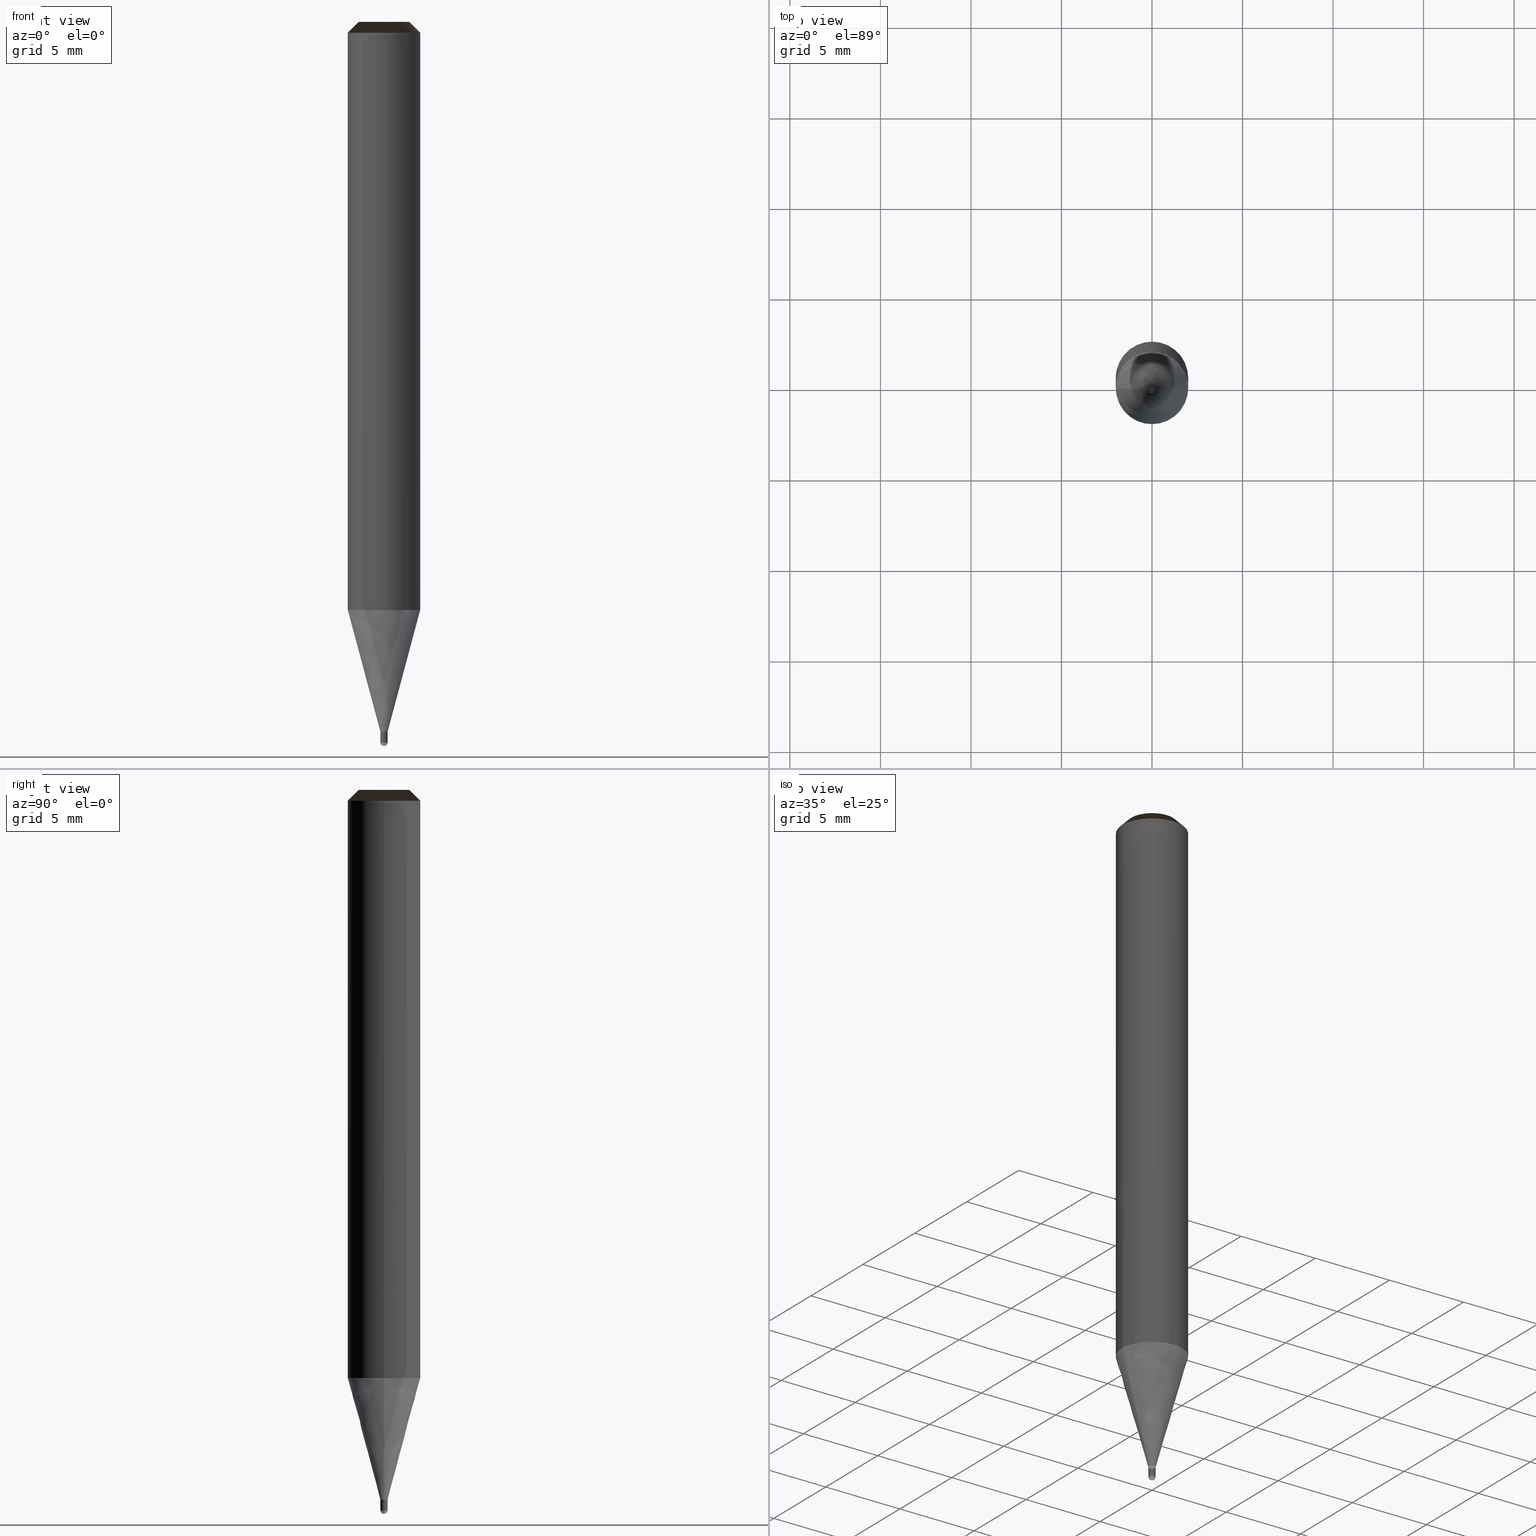
[diagram: canonical four-view strip — front | top / right | iso, engineering-drawing reading convention]
A machine part, canonical four-view strip (front | top / right | iso — engineering-drawing reading convention). The complete STEP part file that produces these views, byte-faithful:
ISO-10303-21;
HEADER;
/* Generated by ISBE GmbH (www.isbe.de) */
/* OPTION: using custom schema-name function */

FILE_DESCRIPTION(
/* description */ (''),
/* implementation_level */ '2;1');

FILE_NAME(
/*name*/ 'SHBS-2004-S04-STH',
/*time_stamp*/'2023-9-12T9:19:16',
/*author*/ ('ISBE GmbH'),
/*organization*/ ('ISBE GmbH'),
/*preprocessor_version*/ 'STEP IO v1.0',
/*originating_system*/ '',
/*authorisation*/ '');

FILE_SCHEMA (('AUTOMOTIVE_DESIGN'));
ENDSEC;

DATA;
#10=SHAPE_DEFINITION_REPRESENTATION(#11,#57);
#11=PRODUCT_DEFINITION_SHAPE('Document','',#13);
#12=PRODUCT_DEFINITION_CONTEXT('3D Mechanical Parts',#17,'design');
#13=PRODUCT_DEFINITION('A','First version',#14,#12);
#14=PRODUCT_DEFINITION_FORMATION_WITH_SPECIFIED_SOURCE('A','First version',#19,.MADE.);
#15=PRODUCT_RELATED_PRODUCT_CATEGORY('tool','tool',(#19));
#16=APPLICATION_PROTOCOL_DEFINITION('Draft International Standard', 'automotive_design',1999,#17);
#17=APPLICATION_CONTEXT('data for automotive mechanical design processes');
#18=PRODUCT_CONTEXT('3D Mechanical Parts',#17,'mechanical');
#19=PRODUCT('Document','Document','ISBE converted to STEP',(#18));
#20=(
LENGTH_UNIT()
NAMED_UNIT(*)
SI_UNIT(.MILLI.,.METRE.)
);
#21=(
NAMED_UNIT(*)
PLANE_ANGLE_UNIT()
SI_UNIT($,.RADIAN.)
);
#22=DIMENSIONAL_EXPONENTS(0.,0.,0.,0.,0.,0.,0.);
#23=PLANE_ANGLE_MEASURE_WITH_UNIT(PLANE_ANGLE_MEASURE(0.01745329252),#21);
#24=(
CONVERSION_BASED_UNIT('DEGREES',#23)
NAMED_UNIT(#22)
PLANE_ANGLE_UNIT()
);
#25=(
NAMED_UNIT(*)
SI_UNIT($,.STERADIAN.)
SOLID_ANGLE_UNIT()
);
#26=UNCERTAINTY_MEASURE_WITH_UNIT(LENGTH_MEASURE(0.001),#20, 'DISTANCE_ACCURACY_VALUE', 'Maximum model space distance between geometric entities at asserted connectivities');
#27=(
GEOMETRIC_REPRESENTATION_CONTEXT(3)
GLOBAL_UNCERTAINTY_ASSIGNED_CONTEXT((#26))
GLOBAL_UNIT_ASSIGNED_CONTEXT((#25,#24,#20))
REPRESENTATION_CONTEXT('ID1','3D')
);
#28=CARTESIAN_POINT('',(0.0,0.0,0.0));
#29=DIRECTION('',(1.0,0.0,0.0));
#30=DIRECTION('',(0.0,0.0,1.0));
#31=AXIS2_PLACEMENT_3D('',#28,#30,#29);
#32=CARTESIAN_POINT('',(0.0,0.0,0.0));
#33=DIRECTION('',(1.0,0.0,0.0));
#34=DIRECTION('',(0.0,0.0,1.0));
#35=AXIS2_PLACEMENT_3D('',#32,#34,#33);
#36=CARTESIAN_POINT('',(0.0,0.0,0.0));
#37=DIRECTION('',(1.0,0.0,0.0));
#38=DIRECTION('',(0.0,0.0,1.0));
#39=AXIS2_PLACEMENT_3D('',#36,#38,#37);
#40=CARTESIAN_POINT('',(0.0,0.0,0.0));
#41=DIRECTION('',(0.0,0.0,1.0));
#42=DIRECTION('',(1.0,0.0,0.0));
#43=AXIS2_PLACEMENT_3D('MCS',#40,#42,#41);
#44=CARTESIAN_POINT('',(0.0,0.0,32.482));
#45=DIRECTION('',(0.0,0.0,1.0));
#46=DIRECTION('',(1.0,0.0,0.0));
#47=AXIS2_PLACEMENT_3D('PCS',#44,#46,#45);
#48=CARTESIAN_POINT('',(0.0,0.0,-7.518));
#49=DIRECTION('',(0.0,0.0,1.0));
#50=DIRECTION('',(1.0,0.0,0.0));
#51=AXIS2_PLACEMENT_3D('CIP',#48,#50,#49);
#52=CARTESIAN_POINT('',(0.0,-0.2,-7.518));
#53=DIRECTION('',(0.0,0.0,1.0));
#54=DIRECTION('',(1.0,0.0,0.0));
#55=AXIS2_PLACEMENT_3D('CRP',#52,#54,#53);
#57=SHAPE_REPRESENTATION('Document',(#31,#35,#39,#43,#47,#51,#55),#27);
#58=DIRECTION('',(1.0,0.0,0.0));
#59=DIRECTION('',(0.0,0.0,1.0));
#60=CARTESIAN_POINT('',(-0.001999898138,-0.000020185088,-7.517967940187));
#61=CARTESIAN_POINT('',(-0.001937184154,-0.00611060247,-7.51789724324));
#62=CARTESIAN_POINT('',(-0.001858291588,-0.012678583356,-7.51758907855));
#63=CARTESIAN_POINT('',(-0.001757884212,-0.019123982412,-7.51707582259));
#64=CARTESIAN_POINT('',(-0.001623963692,-0.025523821837,-7.516358002765));
#65=CARTESIAN_POINT('',(-0.001445384409,-0.03188723763,-7.515436356683));
#66=CARTESIAN_POINT('',(-0.001211340412,-0.038212530765,-7.514311831398));
#67=CARTESIAN_POINT('',(-0.000911345944,-0.044494854652,-7.512985582436));
#68=CARTESIAN_POINT('',(-0.000535273497,-0.050728092807,-7.511458972608));
#69=CARTESIAN_POINT('',(-0.000073403757,-0.056905469984,-7.509733570607));
#70=CARTESIAN_POINT('',(0.000483521659,-0.063019788713,-7.507811149402));
#71=CARTESIAN_POINT('',(0.001144247288,-0.069063532568,-7.50569368441));
#72=CARTESIAN_POINT('',(0.001916951732,-0.075028916386,-7.503383351469));
#73=CARTESIAN_POINT('',(0.002809196959,-0.080907914367,-7.500882524603));
#74=CARTESIAN_POINT('',(0.003827879361,-0.08669227937,-7.49819377358));
#75=CARTESIAN_POINT('',(0.004979182916,-0.092373559718,-7.495319861275));
#76=CARTESIAN_POINT('',(0.006268534774,-0.097943116683,-7.492263740825));
#77=CARTESIAN_POINT('',(0.007700563585,-0.103392144361,-7.489028552601));
#78=CARTESIAN_POINT('',(0.009279060903,-0.108711692868,-7.485617620978));
#79=CARTESIAN_POINT('',(0.011006945995,-0.113892695338,-7.482034450919));
#80=CARTESIAN_POINT('',(0.0128862344,-0.118925998967,-7.478282724374));
#81=CARTESIAN_POINT('',(0.014918010555,-0.123802400146,-7.474366296494));
#82=CARTESIAN_POINT('',(0.017102404853,-0.128512683606,-7.470289191674));
#83=CARTESIAN_POINT('',(0.019438575412,-0.133047665398,-7.466055599415));
#84=CARTESIAN_POINT('',(0.021924694909,-0.137398239442,-7.46166987002));
#85=CARTESIAN_POINT('',(0.024557942723,-0.141555427309,-7.457136510121));
#86=CARTESIAN_POINT('',(0.027334502684,-0.145510430833,-7.452460178052));
#87=CARTESIAN_POINT('',(0.030249566622,-0.149254687095,-7.447645679062));
#88=CARTESIAN_POINT('',(0.033297343939,-0.152779925271,-7.442697960372));
#89=CARTESIAN_POINT('',(0.036471077322,-0.156078224784,-7.437622106098));
#90=CARTESIAN_POINT('',(0.039763064714,-0.159142074176,-7.432423332024));
#91=CARTESIAN_POINT('',(0.043164687581,-0.161964430072,-7.427106980242));
#92=CARTESIAN_POINT('',(0.04666644546,-0.164538775591,-7.421678513662));
#93=CARTESIAN_POINT('',(0.05025799672,-0.166859177548,-7.416143510401));
#94=CARTESIAN_POINT('',(0.053928205397,-0.168920341774,-7.410507658048));
#95=CARTESIAN_POINT('',(0.057665193907,-0.170717665895,-7.404776747824));
#96=CARTESIAN_POINT('',(0.061456401367,-0.172247288908,-7.398956668624));
#97=CARTESIAN_POINT('',(0.065288647189,-0.173506136924,-7.393053400976));
#98=CARTESIAN_POINT('',(0.069148199571,-0.174491964467,-7.387073010884));
#99=CARTESIAN_POINT('',(0.073020848405,-0.175203390765,-7.381021643605));
#100=CARTESIAN_POINT('',(0.076891982118,-0.175639930494,-7.374905517326));
#101=CARTESIAN_POINT('',(0.080746667854,-0.175802018512,-7.368730916782));
#102=CARTESIAN_POINT('',(0.084569734412,-0.17569102817,-7.362504186791));
#103=CARTESIAN_POINT('',(0.088345857261,-0.175309282845,-7.35623172574));
#104=CARTESIAN_POINT('',(0.092059644978,-0.174660060422,-7.349919979007));
#105=CARTESIAN_POINT('',(0.095695726368,-0.173747590532,-7.343575432337));
#106=CARTESIAN_POINT('',(0.099238837562,-0.172577044416,-7.337204605182));
#107=CARTESIAN_POINT('',(0.102673908347,-0.171154517385,-7.330814043996));
#108=CARTESIAN_POINT('',(0.105986147006,-0.16948700392,-7.324410315514));
#109=CARTESIAN_POINT('',(0.109161122935,-0.167582365539,-7.318));
#110=CARTESIAN_POINT('',(0.142612489397,-0.140220105078,-7.243));
#111=CARTESIAN_POINT('',(0.169404967778,-0.106310662175,-7.168));
#112=CARTESIAN_POINT('',(0.188287558844,-0.067437342656,-7.093));
#113=CARTESIAN_POINT('',(0.198378593246,-0.025415226569,-7.018));
#114=CARTESIAN_POINT('',(0.199206898587,0.017793581862,-6.943));
#115=CARTESIAN_POINT('',(0.190733799482,0.060171569159,-6.868));
#116=CARTESIAN_POINT('',(0.173354923405,0.099740014694,-6.793));
#117=CARTESIAN_POINT('',(0.147881727972,0.134651381471,-6.718));
#118=CARTESIAN_POINT('',(0.001999898138,0.000020185088,-7.517967940187));
#119=CARTESIAN_POINT('',(0.001937184154,0.00611060247,-7.51789724324));
#120=CARTESIAN_POINT('',(0.001858291588,0.012678583356,-7.51758907855));
#121=CARTESIAN_POINT('',(0.001757884212,0.019123982412,-7.51707582259));
#122=CARTESIAN_POINT('',(0.001623963692,0.025523821837,-7.516358002765));
#123=CARTESIAN_POINT('',(0.001445384409,0.03188723763,-7.515436356683));
#124=CARTESIAN_POINT('',(0.001211340412,0.038212530765,-7.514311831398));
#125=CARTESIAN_POINT('',(0.000911345944,0.044494854652,-7.512985582436));
#126=CARTESIAN_POINT('',(0.000535273497,0.050728092807,-7.511458972608));
#127=CARTESIAN_POINT('',(0.000073403757,0.056905469984,-7.509733570607));
#128=CARTESIAN_POINT('',(-0.000483521659,0.063019788713,-7.507811149402));
#129=CARTESIAN_POINT('',(-0.001144247288,0.069063532568,-7.50569368441));
#130=CARTESIAN_POINT('',(-0.001916951732,0.075028916386,-7.503383351469));
#131=CARTESIAN_POINT('',(-0.002809196959,0.080907914367,-7.500882524603));
#132=CARTESIAN_POINT('',(-0.003827879361,0.08669227937,-7.49819377358));
#133=CARTESIAN_POINT('',(-0.004979182916,0.092373559718,-7.495319861275));
#134=CARTESIAN_POINT('',(-0.006268534774,0.097943116683,-7.492263740825));
#135=CARTESIAN_POINT('',(-0.007700563585,0.103392144361,-7.489028552601));
#136=CARTESIAN_POINT('',(-0.009279060903,0.108711692868,-7.485617620978));
#137=CARTESIAN_POINT('',(-0.011006945995,0.113892695338,-7.482034450919));
#138=CARTESIAN_POINT('',(-0.0128862344,0.118925998967,-7.478282724374));
#139=CARTESIAN_POINT('',(-0.014918010555,0.123802400146,-7.474366296494));
#140=CARTESIAN_POINT('',(-0.017102404853,0.128512683606,-7.470289191674));
#141=CARTESIAN_POINT('',(-0.019438575412,0.133047665398,-7.466055599415));
#142=CARTESIAN_POINT('',(-0.021924694909,0.137398239442,-7.46166987002));
#143=CARTESIAN_POINT('',(-0.024557942723,0.141555427309,-7.457136510121));
#144=CARTESIAN_POINT('',(-0.027334502684,0.145510430833,-7.452460178052));
#145=CARTESIAN_POINT('',(-0.030249566622,0.149254687095,-7.447645679062));
#146=CARTESIAN_POINT('',(-0.033297343939,0.152779925271,-7.442697960372));
#147=CARTESIAN_POINT('',(-0.036471077322,0.156078224784,-7.437622106098));
#148=CARTESIAN_POINT('',(-0.039763064714,0.159142074176,-7.432423332024));
#149=CARTESIAN_POINT('',(-0.043164687581,0.161964430072,-7.427106980242));
#150=CARTESIAN_POINT('',(-0.04666644546,0.164538775591,-7.421678513662));
#151=CARTESIAN_POINT('',(-0.05025799672,0.166859177548,-7.416143510401));
#152=CARTESIAN_POINT('',(-0.053928205397,0.168920341774,-7.410507658048));
#153=CARTESIAN_POINT('',(-0.057665193907,0.170717665895,-7.404776747824));
#154=CARTESIAN_POINT('',(-0.061456401367,0.172247288908,-7.398956668624));
#155=CARTESIAN_POINT('',(-0.065288647189,0.173506136924,-7.393053400976));
#156=CARTESIAN_POINT('',(-0.069148199571,0.174491964467,-7.387073010884));
#157=CARTESIAN_POINT('',(-0.073020848405,0.175203390765,-7.381021643605));
#158=CARTESIAN_POINT('',(-0.076891982118,0.175639930494,-7.374905517326));
#159=CARTESIAN_POINT('',(-0.080746667854,0.175802018512,-7.368730916782));
#160=CARTESIAN_POINT('',(-0.084569734412,0.17569102817,-7.362504186791));
#161=CARTESIAN_POINT('',(-0.088345857261,0.175309282845,-7.35623172574));
#162=CARTESIAN_POINT('',(-0.092059644978,0.174660060422,-7.349919979007));
#163=CARTESIAN_POINT('',(-0.095695726368,0.173747590532,-7.343575432337));
#164=CARTESIAN_POINT('',(-0.099238837562,0.172577044416,-7.337204605182));
#165=CARTESIAN_POINT('',(-0.102673908347,0.171154517385,-7.330814043996));
#166=CARTESIAN_POINT('',(-0.105986147006,0.16948700392,-7.324410315514));
#167=CARTESIAN_POINT('',(-0.109161122935,0.167582365539,-7.318));
#168=CARTESIAN_POINT('',(-0.142612489397,0.140220105078,-7.243));
#169=CARTESIAN_POINT('',(-0.169404967778,0.106310662175,-7.168));
#170=CARTESIAN_POINT('',(-0.188287558844,0.067437342656,-7.093));
#171=CARTESIAN_POINT('',(-0.198378593246,0.025415226569,-7.018));
#172=CARTESIAN_POINT('',(-0.199206898587,-0.017793581862,-6.943));
#173=CARTESIAN_POINT('',(-0.190733799482,-0.060171569159,-6.868));
#174=CARTESIAN_POINT('',(-0.173354923405,-0.099740014694,-6.793));
#175=CARTESIAN_POINT('',(-0.147881727972,-0.134651381471,-6.718));
#176=CARTESIAN_POINT('',(0.0,0.0,-7.518));
#177=CARTESIAN_POINT('',(0.2,0.0,-7.518));
#178=CARTESIAN_POINT('',(0.2,0.2,-7.518));
#179=CARTESIAN_POINT('',(0.0,0.2,-7.518));
#180=CARTESIAN_POINT('',(-0.2,0.2,-7.518));
#181=CARTESIAN_POINT('',(-0.2,0.0,-7.518));
#182=CARTESIAN_POINT('',(0.2,0.0,-7.318));
#183=CARTESIAN_POINT('',(0.2,0.2,-7.318));
#184=CARTESIAN_POINT('',(0.0,0.2,-7.318));
#185=CARTESIAN_POINT('',(-0.2,0.2,-7.318));
#186=CARTESIAN_POINT('',(-0.2,0.0,-7.318));
#187=CARTESIAN_POINT('',(0.2,0.0,-6.718));
#188=CARTESIAN_POINT('',(0.2,0.2,-6.718));
#189=CARTESIAN_POINT('',(0.0,0.2,-6.718));
#190=CARTESIAN_POINT('',(-0.2,0.2,-6.718));
#191=CARTESIAN_POINT('',(-0.2,0.0,-6.718));
#192=CARTESIAN_POINT('',(0.0,0.0,-6.718));
#193=CARTESIAN_POINT('',(-0.2,-0.2,-7.518));
#194=CARTESIAN_POINT('',(0.0,-0.2,-7.518));
#195=CARTESIAN_POINT('',(0.2,-0.2,-7.518));
#196=CARTESIAN_POINT('',(-0.2,-0.2,-7.318));
#197=CARTESIAN_POINT('',(0.0,-0.2,-7.318));
#198=CARTESIAN_POINT('',(0.2,-0.2,-7.318));
#199=CARTESIAN_POINT('',(-0.2,-0.2,-6.718));
#200=CARTESIAN_POINT('',(0.0,-0.2,-6.718));
#201=CARTESIAN_POINT('',(0.2,-0.2,-6.718));
#202=CARTESIAN_POINT('',(0.2,0.0,-6.717691453624));
#203=CARTESIAN_POINT('',(0.2,0.2,-6.717691453624));
#204=CARTESIAN_POINT('',(0.0,0.2,-6.717691453624));
#205=CARTESIAN_POINT('',(-0.2,0.2,-6.717691453624));
#206=CARTESIAN_POINT('',(-0.2,0.0,-6.717691453624));
#207=CARTESIAN_POINT('',(2.0,0.0,-0.0));
#208=CARTESIAN_POINT('',(2.0,2.0,-0.0));
#209=CARTESIAN_POINT('',(0.0,2.0,-0.0));
#210=CARTESIAN_POINT('',(-2.0,2.0,-0.0));
#211=CARTESIAN_POINT('',(-2.0,0.0,-0.0));
#212=CARTESIAN_POINT('',(2.0,0.0,31.882));
#213=CARTESIAN_POINT('',(2.0,2.0,31.882));
#214=CARTESIAN_POINT('',(0.0,2.0,31.882));
#215=CARTESIAN_POINT('',(-2.0,2.0,31.882));
#216=CARTESIAN_POINT('',(-2.0,0.0,31.882));
#217=CARTESIAN_POINT('',(1.4,0.0,32.482));
#218=CARTESIAN_POINT('',(1.4,1.4,32.482));
#219=CARTESIAN_POINT('',(0.0,1.4,32.482));
#220=CARTESIAN_POINT('',(-1.4,1.4,32.482));
#221=CARTESIAN_POINT('',(-1.4,0.0,32.482));
#222=CARTESIAN_POINT('',(0.0,0.0,32.482));
#223=CARTESIAN_POINT('',(-0.2,-0.2,-6.717691453624));
#224=CARTESIAN_POINT('',(0.0,-0.2,-6.717691453624));
#225=CARTESIAN_POINT('',(0.2,-0.2,-6.717691453624));
#226=CARTESIAN_POINT('',(-2.0,-2.0,-0.0));
#227=CARTESIAN_POINT('',(0.0,-2.0,-0.0));
#228=CARTESIAN_POINT('',(2.0,-2.0,-0.0));
#229=CARTESIAN_POINT('',(-2.0,-2.0,31.882));
#230=CARTESIAN_POINT('',(0.0,-2.0,31.882));
#231=CARTESIAN_POINT('',(2.0,-2.0,31.882));
#232=CARTESIAN_POINT('',(-1.4,-1.4,32.482));
#233=CARTESIAN_POINT('',(0.0,-1.4,32.482));
#234=CARTESIAN_POINT('',(1.4,-1.4,32.482));
#235=(
BOUNDED_CURVE()
B_SPLINE_CURVE(1,(#60,#61,#62,#63,#64,#65,#66,#67,#68,#69,#70,#71,#72,#73,#74,#75,#76,#77,#78,#79,#80,#81,#82,#83,#84,#85,#86,#87,#88,#89,#90,#91,#92,#93,#94,#95,#96,#97,#98,#99,#100,#101,#102,#103,#104,#105,#106,#107,#108,#109,#110,#111,#112,#113,#114,#115,#116,#117),.UNSPECIFIED.,.F.,.F.)
B_SPLINE_CURVE_WITH_KNOTS((2,1,1,1,1,1,1,1,1,1,1,1,1,1,1,1,1,1,1,1,1,1,1,1,1,1,1,1,1,1,1,1,1,1,1,1,1,1,1,1,1,1,1,1,1,1,1,1,1,1,1,1,1,1,1,1,1,2),
(0.0,0.005938330508,0.012349033804,0.018653376583,0.024933132157,0.031204045438,0.037471493311,0.043738020566,0.050005207521,0.05627429735,0.062546451835,0.068822870084,0.075104847856,0.081393807129,0.087691308568,0.093999052806,0.10031887357,0.106652724399,0.113002660091,0.119370813757,0.125759370244,0.132170536666,0.13860651076,0.145069447815,0.151561426903,0.158084417154,0.164640244753,0.171230561351,0.177856814475,0.184520220477,0.191221740487,0.19796205973,0.204741570506,0.211560359019,0.218418196179,0.225314532416,0.232248496469,0.23921889807,0.246224234384,0.253262700007,0.260332200332,0.267430368015,0.274554582308,0.281701990964,0.288869534451,0.296053972174,0.303251910438,0.310459831836,0.317674125808,0.324891120056,0.409279730049,0.493668340042,0.578056950035,0.662445560028,0.746834170021,0.831222780014,0.915611390007,1.0),.UNSPECIFIED.)
CURVE()
GEOMETRIC_REPRESENTATION_ITEM()
RATIONAL_B_SPLINE_CURVE((1.0,1.0,1.0,1.0,1.0,1.0,1.0,1.0,1.0,1.0,1.0,1.0,1.0,1.0,1.0,1.0,1.0,1.0,1.0,1.0,1.0,1.0,1.0,1.0,1.0,1.0,1.0,1.0,1.0,1.0,1.0,1.0,1.0,1.0,1.0,1.0,1.0,1.0,1.0,1.0,1.0,1.0,1.0,1.0,1.0,1.0,1.0,1.0,1.0,1.0,1.0,1.0,1.0,1.0,1.0,1.0,1.0,1.0))
REPRESENTATION_ITEM('')
);
#236=(
BOUNDED_CURVE()
B_SPLINE_CURVE(1,(#118,#119,#120,#121,#122,#123,#124,#125,#126,#127,#128,#129,#130,#131,#132,#133,#134,#135,#136,#137,#138,#139,#140,#141,#142,#143,#144,#145,#146,#147,#148,#149,#150,#151,#152,#153,#154,#155,#156,#157,#158,#159,#160,#161,#162,#163,#164,#165,#166,#167,#168,#169,#170,#171,#172,#173,#174,#175),.UNSPECIFIED.,.F.,.F.)
B_SPLINE_CURVE_WITH_KNOTS((2,1,1,1,1,1,1,1,1,1,1,1,1,1,1,1,1,1,1,1,1,1,1,1,1,1,1,1,1,1,1,1,1,1,1,1,1,1,1,1,1,1,1,1,1,1,1,1,1,1,1,1,1,1,1,1,1,2),
(0.0,0.005938330508,0.012349033804,0.018653376583,0.024933132157,0.031204045438,0.037471493311,0.043738020566,0.050005207521,0.05627429735,0.062546451835,0.068822870084,0.075104847856,0.081393807129,0.087691308568,0.093999052806,0.10031887357,0.106652724399,0.113002660091,0.119370813757,0.125759370244,0.132170536666,0.13860651076,0.145069447815,0.151561426903,0.158084417154,0.164640244753,0.171230561351,0.177856814475,0.184520220477,0.191221740487,0.19796205973,0.204741570506,0.211560359019,0.218418196179,0.225314532416,0.232248496469,0.23921889807,0.246224234384,0.253262700007,0.260332200332,0.267430368015,0.274554582308,0.281701990964,0.288869534451,0.296053972174,0.303251910438,0.310459831836,0.317674125808,0.324891120056,0.409279730049,0.493668340042,0.578056950035,0.662445560028,0.746834170021,0.831222780014,0.915611390007,1.0),.UNSPECIFIED.)
CURVE()
GEOMETRIC_REPRESENTATION_ITEM()
RATIONAL_B_SPLINE_CURVE((1.0,1.0,1.0,1.0,1.0,1.0,1.0,1.0,1.0,1.0,1.0,1.0,1.0,1.0,1.0,1.0,1.0,1.0,1.0,1.0,1.0,1.0,1.0,1.0,1.0,1.0,1.0,1.0,1.0,1.0,1.0,1.0,1.0,1.0,1.0,1.0,1.0,1.0,1.0,1.0,1.0,1.0,1.0,1.0,1.0,1.0,1.0,1.0,1.0,1.0,1.0,1.0,1.0,1.0,1.0,1.0,1.0,1.0))
REPRESENTATION_ITEM('')
);
#237=SHAPE_REPRESENTATION_RELATIONSHIP('','',#57,#238);
#238=GEOMETRICALLY_BOUNDED_WIREFRAME_SHAPE_REPRESENTATION('Curves',(#239,#31),#27);
#239=GEOMETRIC_CURVE_SET('CurveSet',(#235,#236));
#240=(
BOUNDED_SURFACE()
B_SPLINE_SURFACE(2,2,(
(#176,#176,#176,#176,#176),
(#177,#178,#179,#180,#181),
(#182,#183,#184,#185,#186)
), .UNSPECIFIED.,.F.,.F.,.F.)
B_SPLINE_SURFACE_WITH_KNOTS((3,3),(3,2,3),(
0.0,1.0),(
0.0,0.5,1.0), .UNSPECIFIED.)
GEOMETRIC_REPRESENTATION_ITEM()
RATIONAL_B_SPLINE_SURFACE(((1.0,0.707106781187,1.0,0.707106781187,1.0),
(0.707106781187,0.5,0.707106781187,0.5,0.707106781187),
(1.0,0.707106781187,1.0,0.707106781187,1.0)
))
REPRESENTATION_ITEM('')
SURFACE()
);
#241=(
BOUNDED_CURVE()
B_SPLINE_CURVE(2,(#182,#183,#184,#185,#186),.UNSPECIFIED.,.F.,.F.)
B_SPLINE_CURVE_WITH_KNOTS((3,2,3),
(0.0,0.5,1.0),.UNSPECIFIED.)
CURVE()
GEOMETRIC_REPRESENTATION_ITEM()
RATIONAL_B_SPLINE_CURVE((1.0,0.707106781187,1.0,0.707106781187,1.0))
REPRESENTATION_ITEM('')
);
#242=(
BOUNDED_CURVE()
B_SPLINE_CURVE(2,(#186,#181,#176),.UNSPECIFIED.,.F.,.F.)
B_SPLINE_CURVE_WITH_KNOTS((3,3),
(0.0,1.0),.UNSPECIFIED.)
CURVE()
GEOMETRIC_REPRESENTATION_ITEM()
RATIONAL_B_SPLINE_CURVE((1.0,0.707106781187,1.0))
REPRESENTATION_ITEM('')
);
#243=(
BOUNDED_CURVE()
B_SPLINE_CURVE(2,(#176,#177,#182),.UNSPECIFIED.,.F.,.F.)
B_SPLINE_CURVE_WITH_KNOTS((3,3),
(0.0,1.0),.UNSPECIFIED.)
CURVE()
GEOMETRIC_REPRESENTATION_ITEM()
RATIONAL_B_SPLINE_CURVE((1.0,0.707106781187,1.0))
REPRESENTATION_ITEM('')
);
#244=VERTEX_POINT('',#176);
#245=VERTEX_POINT('',#182);
#246=VERTEX_POINT('',#186);
#247=EDGE_CURVE('',#245,#246,#241,.T.);
#248=EDGE_CURVE('',#246,#244,#242,.T.);
#249=EDGE_CURVE('',#244,#245,#243,.T.);
#250=ORIENTED_EDGE('',*,*,#247,.T.);
#251=ORIENTED_EDGE('',*,*,#248,.T.);
#252=ORIENTED_EDGE('',*,*,#249,.T.);
#253=EDGE_LOOP('',(#250,#251,#252));
#254=FACE_OUTER_BOUND('',#253,.T.);
#255=ADVANCED_FACE('',(#254),#240,.T.);
#256=(
BOUNDED_SURFACE()
B_SPLINE_SURFACE(1,2,(
(#182,#183,#184,#185,#186),
(#187,#188,#189,#190,#191)
), .UNSPECIFIED.,.F.,.F.,.F.)
B_SPLINE_SURFACE_WITH_KNOTS((2,2),(3,2,3),(
0.0,1.0),(
0.0,0.5,1.0), .UNSPECIFIED.)
GEOMETRIC_REPRESENTATION_ITEM()
RATIONAL_B_SPLINE_SURFACE(((1.0,0.707106781187,1.0,0.707106781187,1.0),
(1.0,0.707106781187,1.0,0.707106781187,1.0)
))
REPRESENTATION_ITEM('')
SURFACE()
);
#257=(
BOUNDED_CURVE()
B_SPLINE_CURVE(2,(#187,#188,#189,#190,#191),.UNSPECIFIED.,.F.,.F.)
B_SPLINE_CURVE_WITH_KNOTS((3,2,3),
(0.0,0.5,1.0),.UNSPECIFIED.)
CURVE()
GEOMETRIC_REPRESENTATION_ITEM()
RATIONAL_B_SPLINE_CURVE((1.0,0.707106781187,1.0,0.707106781187,1.0))
REPRESENTATION_ITEM('')
);
#258=(
BOUNDED_CURVE()
B_SPLINE_CURVE(1,(#191,#186),.UNSPECIFIED.,.F.,.F.)
B_SPLINE_CURVE_WITH_KNOTS((2,2),
(0.0,1.0),.UNSPECIFIED.)
CURVE()
GEOMETRIC_REPRESENTATION_ITEM()
RATIONAL_B_SPLINE_CURVE((1.0,1.0))
REPRESENTATION_ITEM('')
);
#259=(
BOUNDED_CURVE()
B_SPLINE_CURVE(2,(#186,#185,#184,#183,#182),.UNSPECIFIED.,.F.,.F.)
B_SPLINE_CURVE_WITH_KNOTS((3,2,3),
(0.0,0.5,1.0),.UNSPECIFIED.)
CURVE()
GEOMETRIC_REPRESENTATION_ITEM()
RATIONAL_B_SPLINE_CURVE((1.0,0.707106781187,1.0,0.707106781187,1.0))
REPRESENTATION_ITEM('')
);
#260=(
BOUNDED_CURVE()
B_SPLINE_CURVE(1,(#182,#187),.UNSPECIFIED.,.F.,.F.)
B_SPLINE_CURVE_WITH_KNOTS((2,2),
(0.0,1.0),.UNSPECIFIED.)
CURVE()
GEOMETRIC_REPRESENTATION_ITEM()
RATIONAL_B_SPLINE_CURVE((1.0,1.0))
REPRESENTATION_ITEM('')
);
#261=VERTEX_POINT('',#182);
#262=VERTEX_POINT('',#186);
#263=VERTEX_POINT('',#187);
#264=VERTEX_POINT('',#191);
#265=EDGE_CURVE('',#263,#264,#257,.T.);
#266=EDGE_CURVE('',#264,#262,#258,.T.);
#267=EDGE_CURVE('',#262,#261,#259,.T.);
#268=EDGE_CURVE('',#261,#263,#260,.T.);
#269=ORIENTED_EDGE('',*,*,#265,.T.);
#270=ORIENTED_EDGE('',*,*,#266,.T.);
#271=ORIENTED_EDGE('',*,*,#267,.T.);
#272=ORIENTED_EDGE('',*,*,#268,.T.);
#273=EDGE_LOOP('',(#269,#270,#271,#272));
#274=FACE_OUTER_BOUND('',#273,.T.);
#275=ADVANCED_FACE('',(#274),#256,.T.);
#276=(
BOUNDED_SURFACE()
B_SPLINE_SURFACE(1,2,(
(#187,#188,#189,#190,#191),
(#192,#192,#192,#192,#192)
), .UNSPECIFIED.,.F.,.F.,.F.)
B_SPLINE_SURFACE_WITH_KNOTS((2,2),(3,2,3),(
0.0,1.0),(
0.0,0.5,1.0), .UNSPECIFIED.)
GEOMETRIC_REPRESENTATION_ITEM()
RATIONAL_B_SPLINE_SURFACE(((1.0,0.707106781187,1.0,0.707106781187,1.0),
(1.0,0.707106781187,1.0,0.707106781187,1.0)
))
REPRESENTATION_ITEM('')
SURFACE()
);
#277=(
BOUNDED_CURVE()
B_SPLINE_CURVE(1,(#192,#187),.UNSPECIFIED.,.F.,.F.)
B_SPLINE_CURVE_WITH_KNOTS((2,2),
(0.0,1.0),.UNSPECIFIED.)
CURVE()
GEOMETRIC_REPRESENTATION_ITEM()
RATIONAL_B_SPLINE_CURVE((1.0,1.0))
REPRESENTATION_ITEM('')
);
#278=(
BOUNDED_CURVE()
B_SPLINE_CURVE(2,(#187,#188,#189,#190,#191),.UNSPECIFIED.,.F.,.F.)
B_SPLINE_CURVE_WITH_KNOTS((3,2,3),
(0.0,0.5,1.0),.UNSPECIFIED.)
CURVE()
GEOMETRIC_REPRESENTATION_ITEM()
RATIONAL_B_SPLINE_CURVE((1.0,0.707106781187,1.0,0.707106781187,1.0))
REPRESENTATION_ITEM('')
);
#279=(
BOUNDED_CURVE()
B_SPLINE_CURVE(1,(#191,#192),.UNSPECIFIED.,.F.,.F.)
B_SPLINE_CURVE_WITH_KNOTS((2,2),
(0.0,1.0),.UNSPECIFIED.)
CURVE()
GEOMETRIC_REPRESENTATION_ITEM()
RATIONAL_B_SPLINE_CURVE((1.0,1.0))
REPRESENTATION_ITEM('')
);
#280=VERTEX_POINT('',#187);
#281=VERTEX_POINT('',#191);
#282=VERTEX_POINT('',#192);
#283=EDGE_CURVE('',#282,#280,#277,.T.);
#284=EDGE_CURVE('',#280,#281,#278,.T.);
#285=EDGE_CURVE('',#281,#282,#279,.T.);
#286=ORIENTED_EDGE('',*,*,#283,.T.);
#287=ORIENTED_EDGE('',*,*,#284,.T.);
#288=ORIENTED_EDGE('',*,*,#285,.T.);
#289=EDGE_LOOP('',(#286,#287,#288));
#290=FACE_OUTER_BOUND('',#289,.T.);
#291=ADVANCED_FACE('',(#290),#276,.T.);
#292=(
BOUNDED_SURFACE()
B_SPLINE_SURFACE(2,2,(
(#176,#176,#176,#176,#176),
(#181,#193,#194,#195,#177),
(#186,#196,#197,#198,#182)
), .UNSPECIFIED.,.F.,.F.,.F.)
B_SPLINE_SURFACE_WITH_KNOTS((3,3),(3,2,3),(
0.0,1.0),(
0.0,0.5,1.0), .UNSPECIFIED.)
GEOMETRIC_REPRESENTATION_ITEM()
RATIONAL_B_SPLINE_SURFACE(((1.0,0.707106781187,1.0,0.707106781187,1.0),
(0.707106781187,0.5,0.707106781187,0.5,0.707106781187),
(1.0,0.707106781187,1.0,0.707106781187,1.0)
))
REPRESENTATION_ITEM('')
SURFACE()
);
#293=(
BOUNDED_CURVE()
B_SPLINE_CURVE(2,(#186,#181,#176),.UNSPECIFIED.,.F.,.F.)
B_SPLINE_CURVE_WITH_KNOTS((3,3),
(0.0,1.0),.UNSPECIFIED.)
CURVE()
GEOMETRIC_REPRESENTATION_ITEM()
RATIONAL_B_SPLINE_CURVE((1.0,0.707106781187,1.0))
REPRESENTATION_ITEM('')
);
#294=(
BOUNDED_CURVE()
B_SPLINE_CURVE(2,(#176,#177,#182),.UNSPECIFIED.,.F.,.F.)
B_SPLINE_CURVE_WITH_KNOTS((3,3),
(0.0,1.0),.UNSPECIFIED.)
CURVE()
GEOMETRIC_REPRESENTATION_ITEM()
RATIONAL_B_SPLINE_CURVE((1.0,0.707106781187,1.0))
REPRESENTATION_ITEM('')
);
#295=(
BOUNDED_CURVE()
B_SPLINE_CURVE(2,(#182,#198,#197,#196,#186),.UNSPECIFIED.,.F.,.F.)
B_SPLINE_CURVE_WITH_KNOTS((3,2,3),
(0.0,0.5,1.0),.UNSPECIFIED.)
CURVE()
GEOMETRIC_REPRESENTATION_ITEM()
RATIONAL_B_SPLINE_CURVE((1.0,0.707106781187,1.0,0.707106781187,1.0))
REPRESENTATION_ITEM('')
);
#296=VERTEX_POINT('',#176);
#297=VERTEX_POINT('',#182);
#298=VERTEX_POINT('',#186);
#299=EDGE_CURVE('',#298,#296,#293,.T.);
#300=EDGE_CURVE('',#296,#297,#294,.T.);
#301=EDGE_CURVE('',#297,#298,#295,.T.);
#302=ORIENTED_EDGE('',*,*,#299,.T.);
#303=ORIENTED_EDGE('',*,*,#300,.T.);
#304=ORIENTED_EDGE('',*,*,#301,.T.);
#305=EDGE_LOOP('',(#302,#303,#304));
#306=FACE_OUTER_BOUND('',#305,.T.);
#307=ADVANCED_FACE('',(#306),#292,.T.);
#308=(
BOUNDED_SURFACE()
B_SPLINE_SURFACE(1,2,(
(#186,#196,#197,#198,#182),
(#191,#199,#200,#201,#187)
), .UNSPECIFIED.,.F.,.F.,.F.)
B_SPLINE_SURFACE_WITH_KNOTS((2,2),(3,2,3),(
0.0,1.0),(
0.0,0.5,1.0), .UNSPECIFIED.)
GEOMETRIC_REPRESENTATION_ITEM()
RATIONAL_B_SPLINE_SURFACE(((1.0,0.707106781187,1.0,0.707106781187,1.0),
(1.0,0.707106781187,1.0,0.707106781187,1.0)
))
REPRESENTATION_ITEM('')
SURFACE()
);
#309=(
BOUNDED_CURVE()
B_SPLINE_CURVE(1,(#191,#186),.UNSPECIFIED.,.F.,.F.)
B_SPLINE_CURVE_WITH_KNOTS((2,2),
(0.0,1.0),.UNSPECIFIED.)
CURVE()
GEOMETRIC_REPRESENTATION_ITEM()
RATIONAL_B_SPLINE_CURVE((1.0,1.0))
REPRESENTATION_ITEM('')
);
#310=(
BOUNDED_CURVE()
B_SPLINE_CURVE(2,(#186,#196,#197,#198,#182),.UNSPECIFIED.,.F.,.F.)
B_SPLINE_CURVE_WITH_KNOTS((3,2,3),
(0.0,0.5,1.0),.UNSPECIFIED.)
CURVE()
GEOMETRIC_REPRESENTATION_ITEM()
RATIONAL_B_SPLINE_CURVE((1.0,0.707106781187,1.0,0.707106781187,1.0))
REPRESENTATION_ITEM('')
);
#311=(
BOUNDED_CURVE()
B_SPLINE_CURVE(1,(#182,#187),.UNSPECIFIED.,.F.,.F.)
B_SPLINE_CURVE_WITH_KNOTS((2,2),
(0.0,1.0),.UNSPECIFIED.)
CURVE()
GEOMETRIC_REPRESENTATION_ITEM()
RATIONAL_B_SPLINE_CURVE((1.0,1.0))
REPRESENTATION_ITEM('')
);
#312=(
BOUNDED_CURVE()
B_SPLINE_CURVE(2,(#187,#201,#200,#199,#191),.UNSPECIFIED.,.F.,.F.)
B_SPLINE_CURVE_WITH_KNOTS((3,2,3),
(0.0,0.5,1.0),.UNSPECIFIED.)
CURVE()
GEOMETRIC_REPRESENTATION_ITEM()
RATIONAL_B_SPLINE_CURVE((1.0,0.707106781187,1.0,0.707106781187,1.0))
REPRESENTATION_ITEM('')
);
#313=VERTEX_POINT('',#182);
#314=VERTEX_POINT('',#186);
#315=VERTEX_POINT('',#187);
#316=VERTEX_POINT('',#191);
#317=EDGE_CURVE('',#316,#314,#309,.T.);
#318=EDGE_CURVE('',#314,#313,#310,.T.);
#319=EDGE_CURVE('',#313,#315,#311,.T.);
#320=EDGE_CURVE('',#315,#316,#312,.T.);
#321=ORIENTED_EDGE('',*,*,#317,.T.);
#322=ORIENTED_EDGE('',*,*,#318,.T.);
#323=ORIENTED_EDGE('',*,*,#319,.T.);
#324=ORIENTED_EDGE('',*,*,#320,.T.);
#325=EDGE_LOOP('',(#321,#322,#323,#324));
#326=FACE_OUTER_BOUND('',#325,.T.);
#327=ADVANCED_FACE('',(#326),#308,.T.);
#328=(
BOUNDED_SURFACE()
B_SPLINE_SURFACE(1,2,(
(#191,#199,#200,#201,#187),
(#192,#192,#192,#192,#192)
), .UNSPECIFIED.,.F.,.F.,.F.)
B_SPLINE_SURFACE_WITH_KNOTS((2,2),(3,2,3),(
0.0,1.0),(
0.0,0.5,1.0), .UNSPECIFIED.)
GEOMETRIC_REPRESENTATION_ITEM()
RATIONAL_B_SPLINE_SURFACE(((1.0,0.707106781187,1.0,0.707106781187,1.0),
(1.0,0.707106781187,1.0,0.707106781187,1.0)
))
REPRESENTATION_ITEM('')
SURFACE()
);
#329=(
BOUNDED_CURVE()
B_SPLINE_CURVE(1,(#192,#187),.UNSPECIFIED.,.F.,.F.)
B_SPLINE_CURVE_WITH_KNOTS((2,2),
(0.0,1.0),.UNSPECIFIED.)
CURVE()
GEOMETRIC_REPRESENTATION_ITEM()
RATIONAL_B_SPLINE_CURVE((1.0,1.0))
REPRESENTATION_ITEM('')
);
#330=(
BOUNDED_CURVE()
B_SPLINE_CURVE(2,(#187,#201,#200,#199,#191),.UNSPECIFIED.,.F.,.F.)
B_SPLINE_CURVE_WITH_KNOTS((3,2,3),
(0.0,0.5,1.0),.UNSPECIFIED.)
CURVE()
GEOMETRIC_REPRESENTATION_ITEM()
RATIONAL_B_SPLINE_CURVE((1.0,0.707106781187,1.0,0.707106781187,1.0))
REPRESENTATION_ITEM('')
);
#331=(
BOUNDED_CURVE()
B_SPLINE_CURVE(1,(#191,#192),.UNSPECIFIED.,.F.,.F.)
B_SPLINE_CURVE_WITH_KNOTS((2,2),
(0.0,1.0),.UNSPECIFIED.)
CURVE()
GEOMETRIC_REPRESENTATION_ITEM()
RATIONAL_B_SPLINE_CURVE((1.0,1.0))
REPRESENTATION_ITEM('')
);
#332=VERTEX_POINT('',#187);
#333=VERTEX_POINT('',#191);
#334=VERTEX_POINT('',#192);
#335=EDGE_CURVE('',#334,#332,#329,.T.);
#336=EDGE_CURVE('',#332,#333,#330,.T.);
#337=EDGE_CURVE('',#333,#334,#331,.T.);
#338=ORIENTED_EDGE('',*,*,#335,.T.);
#339=ORIENTED_EDGE('',*,*,#336,.T.);
#340=ORIENTED_EDGE('',*,*,#337,.T.);
#341=EDGE_LOOP('',(#338,#339,#340));
#342=FACE_OUTER_BOUND('',#341,.T.);
#343=ADVANCED_FACE('',(#342),#328,.T.);
#344=CLOSED_SHELL('',(#255,#275,#291,#307,#327,#343));
#345=SHAPE_REPRESENTATION_RELATIONSHIP('','',#57,#346);
#346=ADVANCED_BREP_SHAPE_REPRESENTATION('Solid0',(#347,#31),#27);
#347=MANIFOLD_SOLID_BREP('brep',#344);
#348=(
BOUNDED_SURFACE()
B_SPLINE_SURFACE(1,2,(
(#192,#192,#192,#192,#192),
(#187,#188,#189,#190,#191)
), .UNSPECIFIED.,.F.,.F.,.F.)
B_SPLINE_SURFACE_WITH_KNOTS((2,2),(3,2,3),(
0.0,1.0),(
0.0,0.5,1.0), .UNSPECIFIED.)
GEOMETRIC_REPRESENTATION_ITEM()
RATIONAL_B_SPLINE_SURFACE(((1.0,0.707106781187,1.0,0.707106781187,1.0),
(1.0,0.707106781187,1.0,0.707106781187,1.0)
))
REPRESENTATION_ITEM('')
SURFACE()
);
#349=(
BOUNDED_CURVE()
B_SPLINE_CURVE(2,(#187,#188,#189,#190,#191),.UNSPECIFIED.,.F.,.F.)
B_SPLINE_CURVE_WITH_KNOTS((3,2,3),
(0.0,0.5,1.0),.UNSPECIFIED.)
CURVE()
GEOMETRIC_REPRESENTATION_ITEM()
RATIONAL_B_SPLINE_CURVE((1.0,0.707106781187,1.0,0.707106781187,1.0))
REPRESENTATION_ITEM('')
);
#350=(
BOUNDED_CURVE()
B_SPLINE_CURVE(1,(#191,#192),.UNSPECIFIED.,.F.,.F.)
B_SPLINE_CURVE_WITH_KNOTS((2,2),
(0.0,1.0),.UNSPECIFIED.)
CURVE()
GEOMETRIC_REPRESENTATION_ITEM()
RATIONAL_B_SPLINE_CURVE((1.0,1.0))
REPRESENTATION_ITEM('')
);
#351=(
BOUNDED_CURVE()
B_SPLINE_CURVE(1,(#192,#187),.UNSPECIFIED.,.F.,.F.)
B_SPLINE_CURVE_WITH_KNOTS((2,2),
(0.0,1.0),.UNSPECIFIED.)
CURVE()
GEOMETRIC_REPRESENTATION_ITEM()
RATIONAL_B_SPLINE_CURVE((1.0,1.0))
REPRESENTATION_ITEM('')
);
#352=VERTEX_POINT('',#187);
#353=VERTEX_POINT('',#191);
#354=VERTEX_POINT('',#192);
#355=EDGE_CURVE('',#352,#353,#349,.T.);
#356=EDGE_CURVE('',#353,#354,#350,.T.);
#357=EDGE_CURVE('',#354,#352,#351,.T.);
#358=ORIENTED_EDGE('',*,*,#355,.T.);
#359=ORIENTED_EDGE('',*,*,#356,.T.);
#360=ORIENTED_EDGE('',*,*,#357,.T.);
#361=EDGE_LOOP('',(#358,#359,#360));
#362=FACE_OUTER_BOUND('',#361,.T.);
#363=ADVANCED_FACE('',(#362),#348,.T.);
#364=(
BOUNDED_SURFACE()
B_SPLINE_SURFACE(1,2,(
(#187,#188,#189,#190,#191),
(#202,#203,#204,#205,#206)
), .UNSPECIFIED.,.F.,.F.,.F.)
B_SPLINE_SURFACE_WITH_KNOTS((2,2),(3,2,3),(
0.0,1.0),(
0.0,0.5,1.0), .UNSPECIFIED.)
GEOMETRIC_REPRESENTATION_ITEM()
RATIONAL_B_SPLINE_SURFACE(((1.0,0.707106781187,1.0,0.707106781187,1.0),
(1.0,0.707106781187,1.0,0.707106781187,1.0)
))
REPRESENTATION_ITEM('')
SURFACE()
);
#365=(
BOUNDED_CURVE()
B_SPLINE_CURVE(2,(#202,#203,#204,#205,#206),.UNSPECIFIED.,.F.,.F.)
B_SPLINE_CURVE_WITH_KNOTS((3,2,3),
(0.0,0.5,1.0),.UNSPECIFIED.)
CURVE()
GEOMETRIC_REPRESENTATION_ITEM()
RATIONAL_B_SPLINE_CURVE((1.0,0.707106781187,1.0,0.707106781187,1.0))
REPRESENTATION_ITEM('')
);
#366=(
BOUNDED_CURVE()
B_SPLINE_CURVE(1,(#206,#191),.UNSPECIFIED.,.F.,.F.)
B_SPLINE_CURVE_WITH_KNOTS((2,2),
(0.0,1.0),.UNSPECIFIED.)
CURVE()
GEOMETRIC_REPRESENTATION_ITEM()
RATIONAL_B_SPLINE_CURVE((1.0,1.0))
REPRESENTATION_ITEM('')
);
#367=(
BOUNDED_CURVE()
B_SPLINE_CURVE(2,(#191,#190,#189,#188,#187),.UNSPECIFIED.,.F.,.F.)
B_SPLINE_CURVE_WITH_KNOTS((3,2,3),
(0.0,0.5,1.0),.UNSPECIFIED.)
CURVE()
GEOMETRIC_REPRESENTATION_ITEM()
RATIONAL_B_SPLINE_CURVE((1.0,0.707106781187,1.0,0.707106781187,1.0))
REPRESENTATION_ITEM('')
);
#368=(
BOUNDED_CURVE()
B_SPLINE_CURVE(1,(#187,#202),.UNSPECIFIED.,.F.,.F.)
B_SPLINE_CURVE_WITH_KNOTS((2,2),
(0.0,1.0),.UNSPECIFIED.)
CURVE()
GEOMETRIC_REPRESENTATION_ITEM()
RATIONAL_B_SPLINE_CURVE((1.0,1.0))
REPRESENTATION_ITEM('')
);
#369=VERTEX_POINT('',#187);
#370=VERTEX_POINT('',#191);
#371=VERTEX_POINT('',#202);
#372=VERTEX_POINT('',#206);
#373=EDGE_CURVE('',#371,#372,#365,.T.);
#374=EDGE_CURVE('',#372,#370,#366,.T.);
#375=EDGE_CURVE('',#370,#369,#367,.T.);
#376=EDGE_CURVE('',#369,#371,#368,.T.);
#377=ORIENTED_EDGE('',*,*,#373,.T.);
#378=ORIENTED_EDGE('',*,*,#374,.T.);
#379=ORIENTED_EDGE('',*,*,#375,.T.);
#380=ORIENTED_EDGE('',*,*,#376,.T.);
#381=EDGE_LOOP('',(#377,#378,#379,#380));
#382=FACE_OUTER_BOUND('',#381,.T.);
#383=ADVANCED_FACE('',(#382),#364,.T.);
#384=(
BOUNDED_SURFACE()
B_SPLINE_SURFACE(1,2,(
(#202,#203,#204,#205,#206),
(#207,#208,#209,#210,#211)
), .UNSPECIFIED.,.F.,.F.,.F.)
B_SPLINE_SURFACE_WITH_KNOTS((2,2),(3,2,3),(
0.0,1.0),(
0.0,0.5,1.0), .UNSPECIFIED.)
GEOMETRIC_REPRESENTATION_ITEM()
RATIONAL_B_SPLINE_SURFACE(((1.0,0.707106781187,1.0,0.707106781187,1.0),
(1.0,0.707106781187,1.0,0.707106781187,1.0)
))
REPRESENTATION_ITEM('')
SURFACE()
);
#385=(
BOUNDED_CURVE()
B_SPLINE_CURVE(2,(#207,#208,#209,#210,#211),.UNSPECIFIED.,.F.,.F.)
B_SPLINE_CURVE_WITH_KNOTS((3,2,3),
(0.0,0.5,1.0),.UNSPECIFIED.)
CURVE()
GEOMETRIC_REPRESENTATION_ITEM()
RATIONAL_B_SPLINE_CURVE((1.0,0.707106781187,1.0,0.707106781187,1.0))
REPRESENTATION_ITEM('')
);
#386=(
BOUNDED_CURVE()
B_SPLINE_CURVE(1,(#211,#206),.UNSPECIFIED.,.F.,.F.)
B_SPLINE_CURVE_WITH_KNOTS((2,2),
(0.0,1.0),.UNSPECIFIED.)
CURVE()
GEOMETRIC_REPRESENTATION_ITEM()
RATIONAL_B_SPLINE_CURVE((1.0,1.0))
REPRESENTATION_ITEM('')
);
#387=(
BOUNDED_CURVE()
B_SPLINE_CURVE(2,(#206,#205,#204,#203,#202),.UNSPECIFIED.,.F.,.F.)
B_SPLINE_CURVE_WITH_KNOTS((3,2,3),
(0.0,0.5,1.0),.UNSPECIFIED.)
CURVE()
GEOMETRIC_REPRESENTATION_ITEM()
RATIONAL_B_SPLINE_CURVE((1.0,0.707106781187,1.0,0.707106781187,1.0))
REPRESENTATION_ITEM('')
);
#388=(
BOUNDED_CURVE()
B_SPLINE_CURVE(1,(#202,#207),.UNSPECIFIED.,.F.,.F.)
B_SPLINE_CURVE_WITH_KNOTS((2,2),
(0.0,1.0),.UNSPECIFIED.)
CURVE()
GEOMETRIC_REPRESENTATION_ITEM()
RATIONAL_B_SPLINE_CURVE((1.0,1.0))
REPRESENTATION_ITEM('')
);
#389=VERTEX_POINT('',#202);
#390=VERTEX_POINT('',#206);
#391=VERTEX_POINT('',#207);
#392=VERTEX_POINT('',#211);
#393=EDGE_CURVE('',#391,#392,#385,.T.);
#394=EDGE_CURVE('',#392,#390,#386,.T.);
#395=EDGE_CURVE('',#390,#389,#387,.T.);
#396=EDGE_CURVE('',#389,#391,#388,.T.);
#397=ORIENTED_EDGE('',*,*,#393,.T.);
#398=ORIENTED_EDGE('',*,*,#394,.T.);
#399=ORIENTED_EDGE('',*,*,#395,.T.);
#400=ORIENTED_EDGE('',*,*,#396,.T.);
#401=EDGE_LOOP('',(#397,#398,#399,#400));
#402=FACE_OUTER_BOUND('',#401,.T.);
#403=ADVANCED_FACE('',(#402),#384,.T.);
#404=(
BOUNDED_SURFACE()
B_SPLINE_SURFACE(1,2,(
(#207,#208,#209,#210,#211),
(#212,#213,#214,#215,#216)
), .UNSPECIFIED.,.F.,.F.,.F.)
B_SPLINE_SURFACE_WITH_KNOTS((2,2),(3,2,3),(
0.0,1.0),(
0.0,0.5,1.0), .UNSPECIFIED.)
GEOMETRIC_REPRESENTATION_ITEM()
RATIONAL_B_SPLINE_SURFACE(((1.0,0.707106781187,1.0,0.707106781187,1.0),
(1.0,0.707106781187,1.0,0.707106781187,1.0)
))
REPRESENTATION_ITEM('')
SURFACE()
);
#405=(
BOUNDED_CURVE()
B_SPLINE_CURVE(2,(#212,#213,#214,#215,#216),.UNSPECIFIED.,.F.,.F.)
B_SPLINE_CURVE_WITH_KNOTS((3,2,3),
(0.0,0.5,1.0),.UNSPECIFIED.)
CURVE()
GEOMETRIC_REPRESENTATION_ITEM()
RATIONAL_B_SPLINE_CURVE((1.0,0.707106781187,1.0,0.707106781187,1.0))
REPRESENTATION_ITEM('')
);
#406=(
BOUNDED_CURVE()
B_SPLINE_CURVE(1,(#216,#211),.UNSPECIFIED.,.F.,.F.)
B_SPLINE_CURVE_WITH_KNOTS((2,2),
(0.0,1.0),.UNSPECIFIED.)
CURVE()
GEOMETRIC_REPRESENTATION_ITEM()
RATIONAL_B_SPLINE_CURVE((1.0,1.0))
REPRESENTATION_ITEM('')
);
#407=(
BOUNDED_CURVE()
B_SPLINE_CURVE(2,(#211,#210,#209,#208,#207),.UNSPECIFIED.,.F.,.F.)
B_SPLINE_CURVE_WITH_KNOTS((3,2,3),
(0.0,0.5,1.0),.UNSPECIFIED.)
CURVE()
GEOMETRIC_REPRESENTATION_ITEM()
RATIONAL_B_SPLINE_CURVE((1.0,0.707106781187,1.0,0.707106781187,1.0))
REPRESENTATION_ITEM('')
);
#408=(
BOUNDED_CURVE()
B_SPLINE_CURVE(1,(#207,#212),.UNSPECIFIED.,.F.,.F.)
B_SPLINE_CURVE_WITH_KNOTS((2,2),
(0.0,1.0),.UNSPECIFIED.)
CURVE()
GEOMETRIC_REPRESENTATION_ITEM()
RATIONAL_B_SPLINE_CURVE((1.0,1.0))
REPRESENTATION_ITEM('')
);
#409=VERTEX_POINT('',#207);
#410=VERTEX_POINT('',#211);
#411=VERTEX_POINT('',#212);
#412=VERTEX_POINT('',#216);
#413=EDGE_CURVE('',#411,#412,#405,.T.);
#414=EDGE_CURVE('',#412,#410,#406,.T.);
#415=EDGE_CURVE('',#410,#409,#407,.T.);
#416=EDGE_CURVE('',#409,#411,#408,.T.);
#417=ORIENTED_EDGE('',*,*,#413,.T.);
#418=ORIENTED_EDGE('',*,*,#414,.T.);
#419=ORIENTED_EDGE('',*,*,#415,.T.);
#420=ORIENTED_EDGE('',*,*,#416,.T.);
#421=EDGE_LOOP('',(#417,#418,#419,#420));
#422=FACE_OUTER_BOUND('',#421,.T.);
#423=ADVANCED_FACE('',(#422),#404,.T.);
#424=(
BOUNDED_SURFACE()
B_SPLINE_SURFACE(1,2,(
(#212,#213,#214,#215,#216),
(#217,#218,#219,#220,#221)
), .UNSPECIFIED.,.F.,.F.,.F.)
B_SPLINE_SURFACE_WITH_KNOTS((2,2),(3,2,3),(
0.0,1.0),(
0.0,0.5,1.0), .UNSPECIFIED.)
GEOMETRIC_REPRESENTATION_ITEM()
RATIONAL_B_SPLINE_SURFACE(((1.0,0.707106781187,1.0,0.707106781187,1.0),
(1.0,0.707106781187,1.0,0.707106781187,1.0)
))
REPRESENTATION_ITEM('')
SURFACE()
);
#425=(
BOUNDED_CURVE()
B_SPLINE_CURVE(1,(#217,#212),.UNSPECIFIED.,.F.,.F.)
B_SPLINE_CURVE_WITH_KNOTS((2,2),
(0.0,1.0),.UNSPECIFIED.)
CURVE()
GEOMETRIC_REPRESENTATION_ITEM()
RATIONAL_B_SPLINE_CURVE((1.0,1.0))
REPRESENTATION_ITEM('')
);
#426=(
BOUNDED_CURVE()
B_SPLINE_CURVE(2,(#212,#213,#214,#215,#216),.UNSPECIFIED.,.F.,.F.)
B_SPLINE_CURVE_WITH_KNOTS((3,2,3),
(0.0,0.5,1.0),.UNSPECIFIED.)
CURVE()
GEOMETRIC_REPRESENTATION_ITEM()
RATIONAL_B_SPLINE_CURVE((1.0,0.707106781187,1.0,0.707106781187,1.0))
REPRESENTATION_ITEM('')
);
#427=(
BOUNDED_CURVE()
B_SPLINE_CURVE(1,(#216,#221),.UNSPECIFIED.,.F.,.F.)
B_SPLINE_CURVE_WITH_KNOTS((2,2),
(0.0,1.0),.UNSPECIFIED.)
CURVE()
GEOMETRIC_REPRESENTATION_ITEM()
RATIONAL_B_SPLINE_CURVE((1.0,1.0))
REPRESENTATION_ITEM('')
);
#428=(
BOUNDED_CURVE()
B_SPLINE_CURVE(2,(#221,#220,#219,#218,#217),.UNSPECIFIED.,.F.,.F.)
B_SPLINE_CURVE_WITH_KNOTS((3,2,3),
(0.0,0.5,1.0),.UNSPECIFIED.)
CURVE()
GEOMETRIC_REPRESENTATION_ITEM()
RATIONAL_B_SPLINE_CURVE((1.0,0.707106781187,1.0,0.707106781187,1.0))
REPRESENTATION_ITEM('')
);
#429=VERTEX_POINT('',#212);
#430=VERTEX_POINT('',#216);
#431=VERTEX_POINT('',#217);
#432=VERTEX_POINT('',#221);
#433=EDGE_CURVE('',#431,#429,#425,.T.);
#434=EDGE_CURVE('',#429,#430,#426,.T.);
#435=EDGE_CURVE('',#430,#432,#427,.T.);
#436=EDGE_CURVE('',#432,#431,#428,.T.);
#437=ORIENTED_EDGE('',*,*,#433,.T.);
#438=ORIENTED_EDGE('',*,*,#434,.T.);
#439=ORIENTED_EDGE('',*,*,#435,.T.);
#440=ORIENTED_EDGE('',*,*,#436,.T.);
#441=EDGE_LOOP('',(#437,#438,#439,#440));
#442=FACE_OUTER_BOUND('',#441,.T.);
#443=ADVANCED_FACE('',(#442),#424,.T.);
#444=(
BOUNDED_SURFACE()
B_SPLINE_SURFACE(1,2,(
(#217,#218,#219,#220,#221),
(#222,#222,#222,#222,#222)
), .UNSPECIFIED.,.F.,.F.,.F.)
B_SPLINE_SURFACE_WITH_KNOTS((2,2),(3,2,3),(
0.0,1.0),(
0.0,0.5,1.0), .UNSPECIFIED.)
GEOMETRIC_REPRESENTATION_ITEM()
RATIONAL_B_SPLINE_SURFACE(((1.0,0.707106781187,1.0,0.707106781187,1.0),
(1.0,0.707106781187,1.0,0.707106781187,1.0)
))
REPRESENTATION_ITEM('')
SURFACE()
);
#445=(
BOUNDED_CURVE()
B_SPLINE_CURVE(1,(#222,#217),.UNSPECIFIED.,.F.,.F.)
B_SPLINE_CURVE_WITH_KNOTS((2,2),
(0.0,1.0),.UNSPECIFIED.)
CURVE()
GEOMETRIC_REPRESENTATION_ITEM()
RATIONAL_B_SPLINE_CURVE((1.0,1.0))
REPRESENTATION_ITEM('')
);
#446=(
BOUNDED_CURVE()
B_SPLINE_CURVE(2,(#217,#218,#219,#220,#221),.UNSPECIFIED.,.F.,.F.)
B_SPLINE_CURVE_WITH_KNOTS((3,2,3),
(0.0,0.5,1.0),.UNSPECIFIED.)
CURVE()
GEOMETRIC_REPRESENTATION_ITEM()
RATIONAL_B_SPLINE_CURVE((1.0,0.707106781187,1.0,0.707106781187,1.0))
REPRESENTATION_ITEM('')
);
#447=(
BOUNDED_CURVE()
B_SPLINE_CURVE(1,(#221,#222),.UNSPECIFIED.,.F.,.F.)
B_SPLINE_CURVE_WITH_KNOTS((2,2),
(0.0,1.0),.UNSPECIFIED.)
CURVE()
GEOMETRIC_REPRESENTATION_ITEM()
RATIONAL_B_SPLINE_CURVE((1.0,1.0))
REPRESENTATION_ITEM('')
);
#448=VERTEX_POINT('',#217);
#449=VERTEX_POINT('',#221);
#450=VERTEX_POINT('',#222);
#451=EDGE_CURVE('',#450,#448,#445,.T.);
#452=EDGE_CURVE('',#448,#449,#446,.T.);
#453=EDGE_CURVE('',#449,#450,#447,.T.);
#454=ORIENTED_EDGE('',*,*,#451,.T.);
#455=ORIENTED_EDGE('',*,*,#452,.T.);
#456=ORIENTED_EDGE('',*,*,#453,.T.);
#457=EDGE_LOOP('',(#454,#455,#456));
#458=FACE_OUTER_BOUND('',#457,.T.);
#459=ADVANCED_FACE('',(#458),#444,.T.);
#460=(
BOUNDED_SURFACE()
B_SPLINE_SURFACE(1,2,(
(#192,#192,#192,#192,#192),
(#191,#199,#200,#201,#187)
), .UNSPECIFIED.,.F.,.F.,.F.)
B_SPLINE_SURFACE_WITH_KNOTS((2,2),(3,2,3),(
0.0,1.0),(
0.0,0.5,1.0), .UNSPECIFIED.)
GEOMETRIC_REPRESENTATION_ITEM()
RATIONAL_B_SPLINE_SURFACE(((1.0,0.707106781187,1.0,0.707106781187,1.0),
(1.0,0.707106781187,1.0,0.707106781187,1.0)
))
REPRESENTATION_ITEM('')
SURFACE()
);
#461=(
BOUNDED_CURVE()
B_SPLINE_CURVE(1,(#191,#192),.UNSPECIFIED.,.F.,.F.)
B_SPLINE_CURVE_WITH_KNOTS((2,2),
(0.0,1.0),.UNSPECIFIED.)
CURVE()
GEOMETRIC_REPRESENTATION_ITEM()
RATIONAL_B_SPLINE_CURVE((1.0,1.0))
REPRESENTATION_ITEM('')
);
#462=(
BOUNDED_CURVE()
B_SPLINE_CURVE(1,(#192,#187),.UNSPECIFIED.,.F.,.F.)
B_SPLINE_CURVE_WITH_KNOTS((2,2),
(0.0,1.0),.UNSPECIFIED.)
CURVE()
GEOMETRIC_REPRESENTATION_ITEM()
RATIONAL_B_SPLINE_CURVE((1.0,1.0))
REPRESENTATION_ITEM('')
);
#463=(
BOUNDED_CURVE()
B_SPLINE_CURVE(2,(#187,#201,#200,#199,#191),.UNSPECIFIED.,.F.,.F.)
B_SPLINE_CURVE_WITH_KNOTS((3,2,3),
(0.0,0.5,1.0),.UNSPECIFIED.)
CURVE()
GEOMETRIC_REPRESENTATION_ITEM()
RATIONAL_B_SPLINE_CURVE((1.0,0.707106781187,1.0,0.707106781187,1.0))
REPRESENTATION_ITEM('')
);
#464=VERTEX_POINT('',#187);
#465=VERTEX_POINT('',#191);
#466=VERTEX_POINT('',#192);
#467=EDGE_CURVE('',#465,#466,#461,.T.);
#468=EDGE_CURVE('',#466,#464,#462,.T.);
#469=EDGE_CURVE('',#464,#465,#463,.T.);
#470=ORIENTED_EDGE('',*,*,#467,.T.);
#471=ORIENTED_EDGE('',*,*,#468,.T.);
#472=ORIENTED_EDGE('',*,*,#469,.T.);
#473=EDGE_LOOP('',(#470,#471,#472));
#474=FACE_OUTER_BOUND('',#473,.T.);
#475=ADVANCED_FACE('',(#474),#460,.T.);
#476=(
BOUNDED_SURFACE()
B_SPLINE_SURFACE(1,2,(
(#191,#199,#200,#201,#187),
(#206,#223,#224,#225,#202)
), .UNSPECIFIED.,.F.,.F.,.F.)
B_SPLINE_SURFACE_WITH_KNOTS((2,2),(3,2,3),(
0.0,1.0),(
0.0,0.5,1.0), .UNSPECIFIED.)
GEOMETRIC_REPRESENTATION_ITEM()
RATIONAL_B_SPLINE_SURFACE(((1.0,0.707106781187,1.0,0.707106781187,1.0),
(1.0,0.707106781187,1.0,0.707106781187,1.0)
))
REPRESENTATION_ITEM('')
SURFACE()
);
#477=(
BOUNDED_CURVE()
B_SPLINE_CURVE(1,(#206,#191),.UNSPECIFIED.,.F.,.F.)
B_SPLINE_CURVE_WITH_KNOTS((2,2),
(0.0,1.0),.UNSPECIFIED.)
CURVE()
GEOMETRIC_REPRESENTATION_ITEM()
RATIONAL_B_SPLINE_CURVE((1.0,1.0))
REPRESENTATION_ITEM('')
);
#478=(
BOUNDED_CURVE()
B_SPLINE_CURVE(2,(#191,#199,#200,#201,#187),.UNSPECIFIED.,.F.,.F.)
B_SPLINE_CURVE_WITH_KNOTS((3,2,3),
(0.0,0.5,1.0),.UNSPECIFIED.)
CURVE()
GEOMETRIC_REPRESENTATION_ITEM()
RATIONAL_B_SPLINE_CURVE((1.0,0.707106781187,1.0,0.707106781187,1.0))
REPRESENTATION_ITEM('')
);
#479=(
BOUNDED_CURVE()
B_SPLINE_CURVE(1,(#187,#202),.UNSPECIFIED.,.F.,.F.)
B_SPLINE_CURVE_WITH_KNOTS((2,2),
(0.0,1.0),.UNSPECIFIED.)
CURVE()
GEOMETRIC_REPRESENTATION_ITEM()
RATIONAL_B_SPLINE_CURVE((1.0,1.0))
REPRESENTATION_ITEM('')
);
#480=(
BOUNDED_CURVE()
B_SPLINE_CURVE(2,(#202,#225,#224,#223,#206),.UNSPECIFIED.,.F.,.F.)
B_SPLINE_CURVE_WITH_KNOTS((3,2,3),
(0.0,0.5,1.0),.UNSPECIFIED.)
CURVE()
GEOMETRIC_REPRESENTATION_ITEM()
RATIONAL_B_SPLINE_CURVE((1.0,0.707106781187,1.0,0.707106781187,1.0))
REPRESENTATION_ITEM('')
);
#481=VERTEX_POINT('',#187);
#482=VERTEX_POINT('',#191);
#483=VERTEX_POINT('',#202);
#484=VERTEX_POINT('',#206);
#485=EDGE_CURVE('',#484,#482,#477,.T.);
#486=EDGE_CURVE('',#482,#481,#478,.T.);
#487=EDGE_CURVE('',#481,#483,#479,.T.);
#488=EDGE_CURVE('',#483,#484,#480,.T.);
#489=ORIENTED_EDGE('',*,*,#485,.T.);
#490=ORIENTED_EDGE('',*,*,#486,.T.);
#491=ORIENTED_EDGE('',*,*,#487,.T.);
#492=ORIENTED_EDGE('',*,*,#488,.T.);
#493=EDGE_LOOP('',(#489,#490,#491,#492));
#494=FACE_OUTER_BOUND('',#493,.T.);
#495=ADVANCED_FACE('',(#494),#476,.T.);
#496=(
BOUNDED_SURFACE()
B_SPLINE_SURFACE(1,2,(
(#206,#223,#224,#225,#202),
(#211,#226,#227,#228,#207)
), .UNSPECIFIED.,.F.,.F.,.F.)
B_SPLINE_SURFACE_WITH_KNOTS((2,2),(3,2,3),(
0.0,1.0),(
0.0,0.5,1.0), .UNSPECIFIED.)
GEOMETRIC_REPRESENTATION_ITEM()
RATIONAL_B_SPLINE_SURFACE(((1.0,0.707106781187,1.0,0.707106781187,1.0),
(1.0,0.707106781187,1.0,0.707106781187,1.0)
))
REPRESENTATION_ITEM('')
SURFACE()
);
#497=(
BOUNDED_CURVE()
B_SPLINE_CURVE(1,(#211,#206),.UNSPECIFIED.,.F.,.F.)
B_SPLINE_CURVE_WITH_KNOTS((2,2),
(0.0,1.0),.UNSPECIFIED.)
CURVE()
GEOMETRIC_REPRESENTATION_ITEM()
RATIONAL_B_SPLINE_CURVE((1.0,1.0))
REPRESENTATION_ITEM('')
);
#498=(
BOUNDED_CURVE()
B_SPLINE_CURVE(2,(#206,#223,#224,#225,#202),.UNSPECIFIED.,.F.,.F.)
B_SPLINE_CURVE_WITH_KNOTS((3,2,3),
(0.0,0.5,1.0),.UNSPECIFIED.)
CURVE()
GEOMETRIC_REPRESENTATION_ITEM()
RATIONAL_B_SPLINE_CURVE((1.0,0.707106781187,1.0,0.707106781187,1.0))
REPRESENTATION_ITEM('')
);
#499=(
BOUNDED_CURVE()
B_SPLINE_CURVE(1,(#202,#207),.UNSPECIFIED.,.F.,.F.)
B_SPLINE_CURVE_WITH_KNOTS((2,2),
(0.0,1.0),.UNSPECIFIED.)
CURVE()
GEOMETRIC_REPRESENTATION_ITEM()
RATIONAL_B_SPLINE_CURVE((1.0,1.0))
REPRESENTATION_ITEM('')
);
#500=(
BOUNDED_CURVE()
B_SPLINE_CURVE(2,(#207,#228,#227,#226,#211),.UNSPECIFIED.,.F.,.F.)
B_SPLINE_CURVE_WITH_KNOTS((3,2,3),
(0.0,0.5,1.0),.UNSPECIFIED.)
CURVE()
GEOMETRIC_REPRESENTATION_ITEM()
RATIONAL_B_SPLINE_CURVE((1.0,0.707106781187,1.0,0.707106781187,1.0))
REPRESENTATION_ITEM('')
);
#501=VERTEX_POINT('',#202);
#502=VERTEX_POINT('',#206);
#503=VERTEX_POINT('',#207);
#504=VERTEX_POINT('',#211);
#505=EDGE_CURVE('',#504,#502,#497,.T.);
#506=EDGE_CURVE('',#502,#501,#498,.T.);
#507=EDGE_CURVE('',#501,#503,#499,.T.);
#508=EDGE_CURVE('',#503,#504,#500,.T.);
#509=ORIENTED_EDGE('',*,*,#505,.T.);
#510=ORIENTED_EDGE('',*,*,#506,.T.);
#511=ORIENTED_EDGE('',*,*,#507,.T.);
#512=ORIENTED_EDGE('',*,*,#508,.T.);
#513=EDGE_LOOP('',(#509,#510,#511,#512));
#514=FACE_OUTER_BOUND('',#513,.T.);
#515=ADVANCED_FACE('',(#514),#496,.T.);
#516=(
BOUNDED_SURFACE()
B_SPLINE_SURFACE(1,2,(
(#211,#226,#227,#228,#207),
(#216,#229,#230,#231,#212)
), .UNSPECIFIED.,.F.,.F.,.F.)
B_SPLINE_SURFACE_WITH_KNOTS((2,2),(3,2,3),(
0.0,1.0),(
0.0,0.5,1.0), .UNSPECIFIED.)
GEOMETRIC_REPRESENTATION_ITEM()
RATIONAL_B_SPLINE_SURFACE(((1.0,0.707106781187,1.0,0.707106781187,1.0),
(1.0,0.707106781187,1.0,0.707106781187,1.0)
))
REPRESENTATION_ITEM('')
SURFACE()
);
#517=(
BOUNDED_CURVE()
B_SPLINE_CURVE(1,(#216,#211),.UNSPECIFIED.,.F.,.F.)
B_SPLINE_CURVE_WITH_KNOTS((2,2),
(0.0,1.0),.UNSPECIFIED.)
CURVE()
GEOMETRIC_REPRESENTATION_ITEM()
RATIONAL_B_SPLINE_CURVE((1.0,1.0))
REPRESENTATION_ITEM('')
);
#518=(
BOUNDED_CURVE()
B_SPLINE_CURVE(2,(#211,#226,#227,#228,#207),.UNSPECIFIED.,.F.,.F.)
B_SPLINE_CURVE_WITH_KNOTS((3,2,3),
(0.0,0.5,1.0),.UNSPECIFIED.)
CURVE()
GEOMETRIC_REPRESENTATION_ITEM()
RATIONAL_B_SPLINE_CURVE((1.0,0.707106781187,1.0,0.707106781187,1.0))
REPRESENTATION_ITEM('')
);
#519=(
BOUNDED_CURVE()
B_SPLINE_CURVE(1,(#207,#212),.UNSPECIFIED.,.F.,.F.)
B_SPLINE_CURVE_WITH_KNOTS((2,2),
(0.0,1.0),.UNSPECIFIED.)
CURVE()
GEOMETRIC_REPRESENTATION_ITEM()
RATIONAL_B_SPLINE_CURVE((1.0,1.0))
REPRESENTATION_ITEM('')
);
#520=(
BOUNDED_CURVE()
B_SPLINE_CURVE(2,(#212,#231,#230,#229,#216),.UNSPECIFIED.,.F.,.F.)
B_SPLINE_CURVE_WITH_KNOTS((3,2,3),
(0.0,0.5,1.0),.UNSPECIFIED.)
CURVE()
GEOMETRIC_REPRESENTATION_ITEM()
RATIONAL_B_SPLINE_CURVE((1.0,0.707106781187,1.0,0.707106781187,1.0))
REPRESENTATION_ITEM('')
);
#521=VERTEX_POINT('',#207);
#522=VERTEX_POINT('',#211);
#523=VERTEX_POINT('',#212);
#524=VERTEX_POINT('',#216);
#525=EDGE_CURVE('',#524,#522,#517,.T.);
#526=EDGE_CURVE('',#522,#521,#518,.T.);
#527=EDGE_CURVE('',#521,#523,#519,.T.);
#528=EDGE_CURVE('',#523,#524,#520,.T.);
#529=ORIENTED_EDGE('',*,*,#525,.T.);
#530=ORIENTED_EDGE('',*,*,#526,.T.);
#531=ORIENTED_EDGE('',*,*,#527,.T.);
#532=ORIENTED_EDGE('',*,*,#528,.T.);
#533=EDGE_LOOP('',(#529,#530,#531,#532));
#534=FACE_OUTER_BOUND('',#533,.T.);
#535=ADVANCED_FACE('',(#534),#516,.T.);
#536=(
BOUNDED_SURFACE()
B_SPLINE_SURFACE(1,2,(
(#216,#229,#230,#231,#212),
(#221,#232,#233,#234,#217)
), .UNSPECIFIED.,.F.,.F.,.F.)
B_SPLINE_SURFACE_WITH_KNOTS((2,2),(3,2,3),(
0.0,1.0),(
0.0,0.5,1.0), .UNSPECIFIED.)
GEOMETRIC_REPRESENTATION_ITEM()
RATIONAL_B_SPLINE_SURFACE(((1.0,0.707106781187,1.0,0.707106781187,1.0),
(1.0,0.707106781187,1.0,0.707106781187,1.0)
))
REPRESENTATION_ITEM('')
SURFACE()
);
#537=(
BOUNDED_CURVE()
B_SPLINE_CURVE(2,(#221,#232,#233,#234,#217),.UNSPECIFIED.,.F.,.F.)
B_SPLINE_CURVE_WITH_KNOTS((3,2,3),
(0.0,0.5,1.0),.UNSPECIFIED.)
CURVE()
GEOMETRIC_REPRESENTATION_ITEM()
RATIONAL_B_SPLINE_CURVE((1.0,0.707106781187,1.0,0.707106781187,1.0))
REPRESENTATION_ITEM('')
);
#538=(
BOUNDED_CURVE()
B_SPLINE_CURVE(1,(#217,#212),.UNSPECIFIED.,.F.,.F.)
B_SPLINE_CURVE_WITH_KNOTS((2,2),
(0.0,1.0),.UNSPECIFIED.)
CURVE()
GEOMETRIC_REPRESENTATION_ITEM()
RATIONAL_B_SPLINE_CURVE((1.0,1.0))
REPRESENTATION_ITEM('')
);
#539=(
BOUNDED_CURVE()
B_SPLINE_CURVE(2,(#212,#231,#230,#229,#216),.UNSPECIFIED.,.F.,.F.)
B_SPLINE_CURVE_WITH_KNOTS((3,2,3),
(0.0,0.5,1.0),.UNSPECIFIED.)
CURVE()
GEOMETRIC_REPRESENTATION_ITEM()
RATIONAL_B_SPLINE_CURVE((1.0,0.707106781187,1.0,0.707106781187,1.0))
REPRESENTATION_ITEM('')
);
#540=(
BOUNDED_CURVE()
B_SPLINE_CURVE(1,(#216,#221),.UNSPECIFIED.,.F.,.F.)
B_SPLINE_CURVE_WITH_KNOTS((2,2),
(0.0,1.0),.UNSPECIFIED.)
CURVE()
GEOMETRIC_REPRESENTATION_ITEM()
RATIONAL_B_SPLINE_CURVE((1.0,1.0))
REPRESENTATION_ITEM('')
);
#541=VERTEX_POINT('',#212);
#542=VERTEX_POINT('',#216);
#543=VERTEX_POINT('',#217);
#544=VERTEX_POINT('',#221);
#545=EDGE_CURVE('',#544,#543,#537,.T.);
#546=EDGE_CURVE('',#543,#541,#538,.T.);
#547=EDGE_CURVE('',#541,#542,#539,.T.);
#548=EDGE_CURVE('',#542,#544,#540,.T.);
#549=ORIENTED_EDGE('',*,*,#545,.T.);
#550=ORIENTED_EDGE('',*,*,#546,.T.);
#551=ORIENTED_EDGE('',*,*,#547,.T.);
#552=ORIENTED_EDGE('',*,*,#548,.T.);
#553=EDGE_LOOP('',(#549,#550,#551,#552));
#554=FACE_OUTER_BOUND('',#553,.T.);
#555=ADVANCED_FACE('',(#554),#536,.T.);
#556=(
BOUNDED_SURFACE()
B_SPLINE_SURFACE(1,2,(
(#221,#232,#233,#234,#217),
(#222,#222,#222,#222,#222)
), .UNSPECIFIED.,.F.,.F.,.F.)
B_SPLINE_SURFACE_WITH_KNOTS((2,2),(3,2,3),(
0.0,1.0),(
0.0,0.5,1.0), .UNSPECIFIED.)
GEOMETRIC_REPRESENTATION_ITEM()
RATIONAL_B_SPLINE_SURFACE(((1.0,0.707106781187,1.0,0.707106781187,1.0),
(1.0,0.707106781187,1.0,0.707106781187,1.0)
))
REPRESENTATION_ITEM('')
SURFACE()
);
#557=(
BOUNDED_CURVE()
B_SPLINE_CURVE(1,(#222,#217),.UNSPECIFIED.,.F.,.F.)
B_SPLINE_CURVE_WITH_KNOTS((2,2),
(0.0,1.0),.UNSPECIFIED.)
CURVE()
GEOMETRIC_REPRESENTATION_ITEM()
RATIONAL_B_SPLINE_CURVE((1.0,1.0))
REPRESENTATION_ITEM('')
);
#558=(
BOUNDED_CURVE()
B_SPLINE_CURVE(2,(#217,#234,#233,#232,#221),.UNSPECIFIED.,.F.,.F.)
B_SPLINE_CURVE_WITH_KNOTS((3,2,3),
(0.0,0.5,1.0),.UNSPECIFIED.)
CURVE()
GEOMETRIC_REPRESENTATION_ITEM()
RATIONAL_B_SPLINE_CURVE((1.0,0.707106781187,1.0,0.707106781187,1.0))
REPRESENTATION_ITEM('')
);
#559=(
BOUNDED_CURVE()
B_SPLINE_CURVE(1,(#221,#222),.UNSPECIFIED.,.F.,.F.)
B_SPLINE_CURVE_WITH_KNOTS((2,2),
(0.0,1.0),.UNSPECIFIED.)
CURVE()
GEOMETRIC_REPRESENTATION_ITEM()
RATIONAL_B_SPLINE_CURVE((1.0,1.0))
REPRESENTATION_ITEM('')
);
#560=VERTEX_POINT('',#217);
#561=VERTEX_POINT('',#221);
#562=VERTEX_POINT('',#222);
#563=EDGE_CURVE('',#562,#560,#557,.T.);
#564=EDGE_CURVE('',#560,#561,#558,.T.);
#565=EDGE_CURVE('',#561,#562,#559,.T.);
#566=ORIENTED_EDGE('',*,*,#563,.T.);
#567=ORIENTED_EDGE('',*,*,#564,.T.);
#568=ORIENTED_EDGE('',*,*,#565,.T.);
#569=EDGE_LOOP('',(#566,#567,#568));
#570=FACE_OUTER_BOUND('',#569,.T.);
#571=ADVANCED_FACE('',(#570),#556,.T.);
#572=CLOSED_SHELL('',(#363,#383,#403,#423,#443,#459,#475,#495,#515,#535,#555,#571));
#573=SHAPE_REPRESENTATION_RELATIONSHIP('','',#57,#574);
#574=ADVANCED_BREP_SHAPE_REPRESENTATION('Solid1',(#575,#31),#27);
#575=MANIFOLD_SOLID_BREP('brep',#572);
#576=PRESENTATION_LAYER_ASSIGNMENT('CUT','',(#347));
#577=PRESENTATION_LAYER_ASSIGNMENT('NOCUT','',(#575));
#578=PRESENTATION_LAYER_ASSIGNMENT('DETAILS','',(#235,#236));
#579=COLOUR_RGB('',0.8,0.8,0.8);
#580=COLOUR_RGB('',0.501960784314,0.501960784314,0.501960784314);
#581=COLOUR_RGB('',0.0,0.0,1.0);
#582=STYLED_ITEM('',(#583),#235);
#583=PRESENTATION_STYLE_ASSIGNMENT((#584));
#584=CURVE_STYLE('',#585,POSITIVE_LENGTH_MEASURE(0.02),#581);
#585=DRAUGHTING_PRE_DEFINED_CURVE_FONT('continuous');
#586=STYLED_ITEM('',(#587),#236);
#587=PRESENTATION_STYLE_ASSIGNMENT((#588));
#588=CURVE_STYLE('',#589,POSITIVE_LENGTH_MEASURE(0.02),#581);
#589=DRAUGHTING_PRE_DEFINED_CURVE_FONT('continuous');
#590=STYLED_ITEM('',(#591),#347);
#591=PRESENTATION_STYLE_ASSIGNMENT((#592));
#592=SURFACE_STYLE_USAGE(.BOTH.,#593);
#593=SURFACE_SIDE_STYLE('',(#594));
#594=SURFACE_STYLE_FILL_AREA(#595);
#595=FILL_AREA_STYLE('',(#596));
#596=FILL_AREA_STYLE_COLOUR('',#579);
#597=STYLED_ITEM('',(#598),#575);
#598=PRESENTATION_STYLE_ASSIGNMENT((#599));
#599=SURFACE_STYLE_USAGE(.BOTH.,#600);
#600=SURFACE_SIDE_STYLE('',(#601));
#601=SURFACE_STYLE_FILL_AREA(#602);
#602=FILL_AREA_STYLE('',(#603));
#603=FILL_AREA_STYLE_COLOUR('',#580);
#604=MECHANICAL_DESIGN_GEOMETRIC_PRESENTATION_REPRESENTATION('',(#582,#586,#590,#597),#27);
#605==CONSTRUCTIVE_GEOMETRY_REPRESENTATION('coordinate systems',(#43,#47,#51,#55), #27);
#606==CONSTRUCTIVE_GEOMETRY_REPRESENTATION_RELATIONSHIP('coordinate systems',$,#57,#605);

ENDSEC;
END-ISO-10303-21;